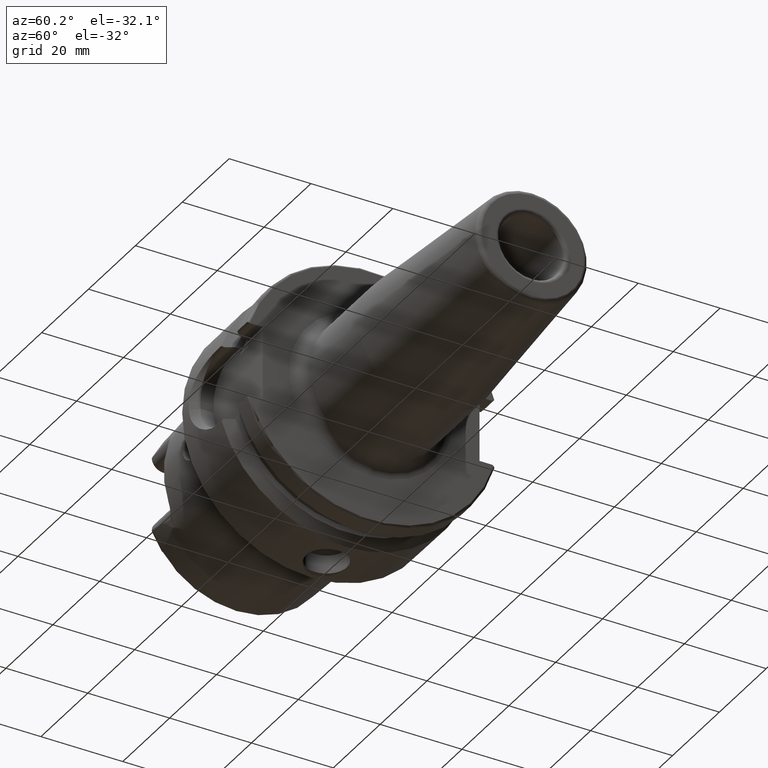
[diagram: clean part render]
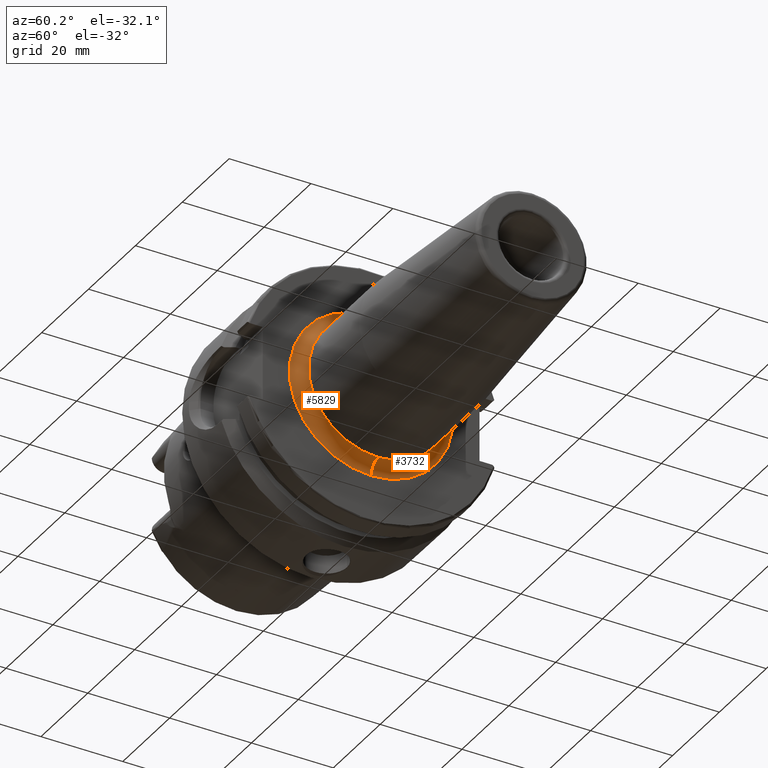
[diagram: same view with one multi-face feature highlighted, each face labeled with its STEP entity id]
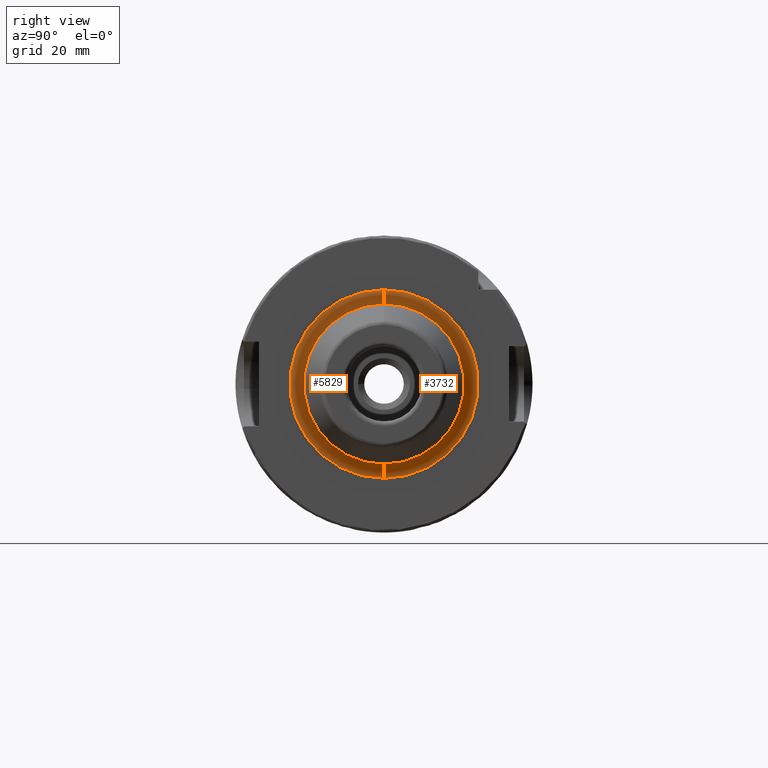
[diagram: same view with one multi-face feature highlighted, each face labeled with its STEP entity id]
A machine part, auxiliary view. The highlighted faces form ONE feature: a constant-radius fillet chain: 2 tangent blend faces with common blend radius 3 mm. The faces share edges in the B-rep.
A second angle (right view) of the same feature is appended — it is thin or edge-on in the first view.
Their STEP definitions:
[1] entity #5829 (Torus):
#667=CARTESIAN_POINT('',(2.6E1,0.E0,0.E0));
#668=DIRECTION('',(1.E0,0.E0,0.E0));
#669=DIRECTION('',(0.E0,0.E0,1.E0));
#670=AXIS2_PLACEMENT_3D('',#667,#668,#669);
#2465=CARTESIAN_POINT('',(2.9E1,0.E0,2.E1));
#2466=DIRECTION('',(0.E0,1.E0,0.E0));
#2467=DIRECTION('',(0.E0,0.E0,-1.E0));
#2468=AXIS2_PLACEMENT_3D('',#2465,#2466,#2467);
#2470=CARTESIAN_POINT('',(2.9E1,0.E0,0.E0));
#2471=DIRECTION('',(-1.E0,0.E0,0.E0));
#2472=DIRECTION('',(0.E0,0.E0,-1.E0));
#2473=AXIS2_PLACEMENT_3D('',#2470,#2471,#2472);
#2475=CARTESIAN_POINT('',(2.9E1,0.E0,-2.E1));
#2476=DIRECTION('',(0.E0,-1.E0,0.E0));
#2477=DIRECTION('',(0.E0,0.E0,1.E0));
#2478=AXIS2_PLACEMENT_3D('',#2475,#2476,#2477);
#2960=CARTESIAN_POINT('',(2.9E1,0.E0,-1.7E1));
#2961=VERTEX_POINT('',#2960);
#2982=CARTESIAN_POINT('',(2.9E1,0.E0,1.7E1));
#2983=VERTEX_POINT('',#2982);
#2984=CARTESIAN_POINT('',(2.6E1,0.E0,-2.E1));
#2985=CARTESIAN_POINT('',(2.6E1,0.E0,2.E1));
#2986=VERTEX_POINT('',#2984);
#2987=VERTEX_POINT('',#2985);
#5818=CARTESIAN_POINT('',(2.9E1,0.E0,0.E0));
#5819=DIRECTION('',(1.E0,0.E0,0.E0));
#5820=DIRECTION('',(0.E0,0.E0,1.E0));
#5821=AXIS2_PLACEMENT_3D('',#5818,#5819,#5820);
#5822=TOROIDAL_SURFACE('',#5821,2.E1,3.E0);
#5823=ORIENTED_EDGE('',*,*,#3767,.F.);
#5824=ORIENTED_EDGE('',*,*,#3728,.F.);
#5825=ORIENTED_EDGE('',*,*,#3697,.F.);
#5826=ORIENTED_EDGE('',*,*,#3725,.T.);
#5827=EDGE_LOOP('',(#5823,#5824,#5825,#5826));
#5828=FACE_OUTER_BOUND('',#5827,.F.);
#5829=ADVANCED_FACE('',(#5828),#5822,.F.);
#671=CIRCLE('',#670,2.E1);
#2469=CIRCLE('',#2468,3.E0);
#2474=CIRCLE('',#2473,1.7E1);
#2479=CIRCLE('',#2478,3.E0);
#3697=EDGE_CURVE('',#2961,#2983,#2474,.T.);
#3725=EDGE_CURVE('',#2961,#2986,#2479,.T.);
#3728=EDGE_CURVE('',#2983,#2987,#2469,.T.);
#3767=EDGE_CURVE('',#2987,#2986,#671,.T.);
[2] entity #3732 (Torus):
#617=CARTESIAN_POINT('',(2.9E1,0.E0,0.E0));
#618=DIRECTION('',(1.E0,0.E0,0.E0));
#619=DIRECTION('',(0.E0,0.E0,-1.E0));
#620=AXIS2_PLACEMENT_3D('',#617,#618,#619);
#662=CARTESIAN_POINT('',(2.6E1,0.E0,0.E0));
#663=DIRECTION('',(1.E0,0.E0,0.E0));
#664=DIRECTION('',(0.E0,0.E0,-1.E0));
#665=AXIS2_PLACEMENT_3D('',#662,#663,#664);
#2465=CARTESIAN_POINT('',(2.9E1,0.E0,2.E1));
#2466=DIRECTION('',(0.E0,1.E0,0.E0));
#2467=DIRECTION('',(0.E0,0.E0,-1.E0));
#2468=AXIS2_PLACEMENT_3D('',#2465,#2466,#2467);
#2475=CARTESIAN_POINT('',(2.9E1,0.E0,-2.E1));
#2476=DIRECTION('',(0.E0,-1.E0,0.E0));
#2477=DIRECTION('',(0.E0,0.E0,1.E0));
#2478=AXIS2_PLACEMENT_3D('',#2475,#2476,#2477);
#2960=CARTESIAN_POINT('',(2.9E1,0.E0,-1.7E1));
#2961=VERTEX_POINT('',#2960);
#2982=CARTESIAN_POINT('',(2.9E1,0.E0,1.7E1));
#2983=VERTEX_POINT('',#2982);
#2984=CARTESIAN_POINT('',(2.6E1,0.E0,-2.E1));
#2985=CARTESIAN_POINT('',(2.6E1,0.E0,2.E1));
#2986=VERTEX_POINT('',#2984);
#2987=VERTEX_POINT('',#2985);
#3718=CARTESIAN_POINT('',(2.9E1,0.E0,0.E0));
#3719=DIRECTION('',(1.E0,0.E0,0.E0));
#3720=DIRECTION('',(0.E0,0.E0,1.E0));
#3721=AXIS2_PLACEMENT_3D('',#3718,#3719,#3720);
#3722=TOROIDAL_SURFACE('',#3721,2.E1,3.E0);
#3724=ORIENTED_EDGE('',*,*,#3723,.F.);
#3726=ORIENTED_EDGE('',*,*,#3725,.F.);
#3727=ORIENTED_EDGE('',*,*,#3713,.T.);
#3729=ORIENTED_EDGE('',*,*,#3728,.T.);
#3730=EDGE_LOOP('',(#3724,#3726,#3727,#3729));
#3731=FACE_OUTER_BOUND('',#3730,.F.);
#3732=ADVANCED_FACE('',(#3731),#3722,.F.);
#621=CIRCLE('',#620,1.7E1);
#666=CIRCLE('',#665,2.E1);
#2469=CIRCLE('',#2468,3.E0);
#2479=CIRCLE('',#2478,3.E0);
#3713=EDGE_CURVE('',#2961,#2983,#621,.T.);
#3723=EDGE_CURVE('',#2986,#2987,#666,.T.);
#3725=EDGE_CURVE('',#2961,#2986,#2479,.T.);
#3728=EDGE_CURVE('',#2983,#2987,#2469,.T.);